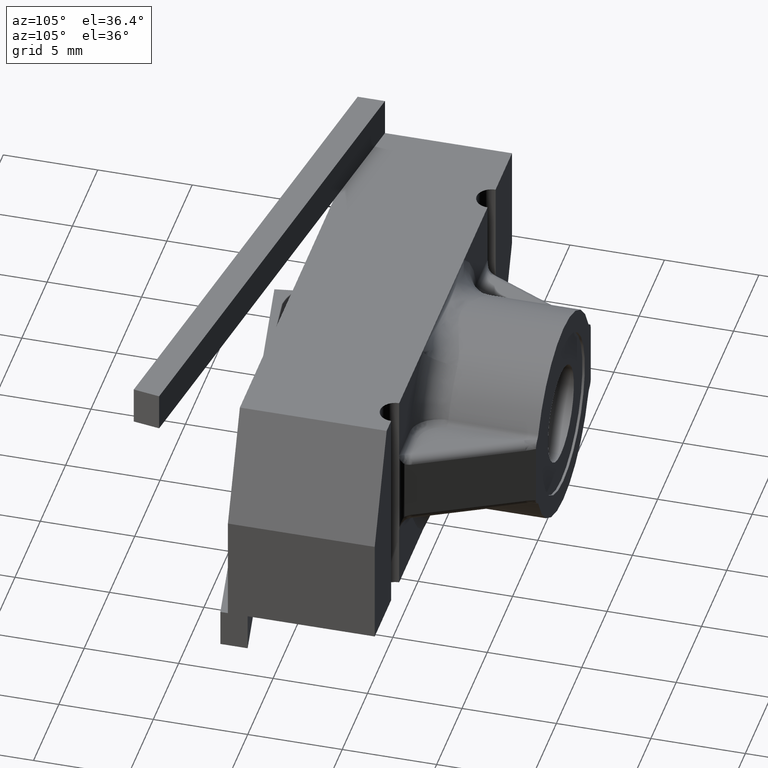
[diagram: clean part render]
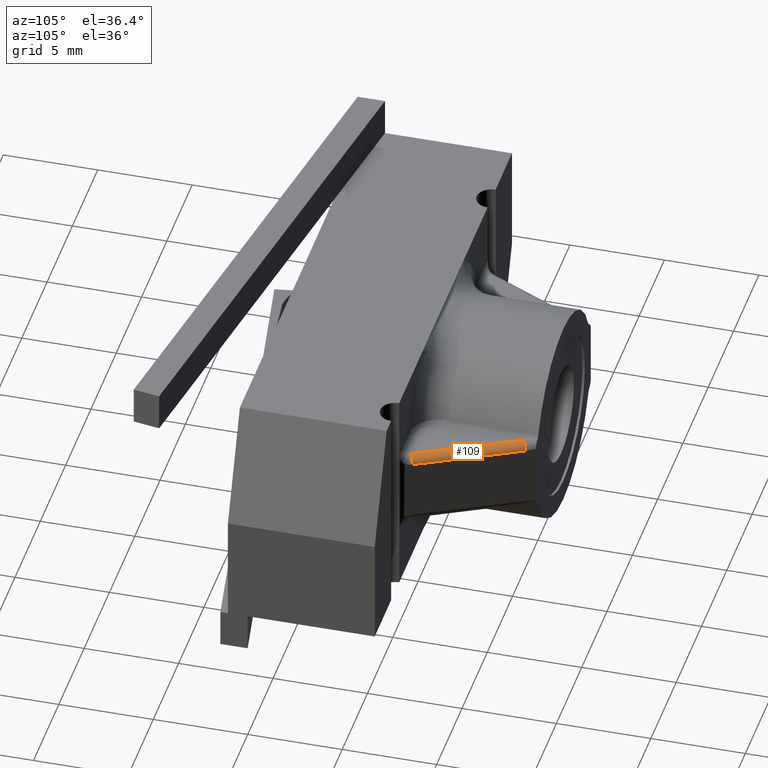
[diagram: same view with one face highlighted and labeled with its STEP entity id]
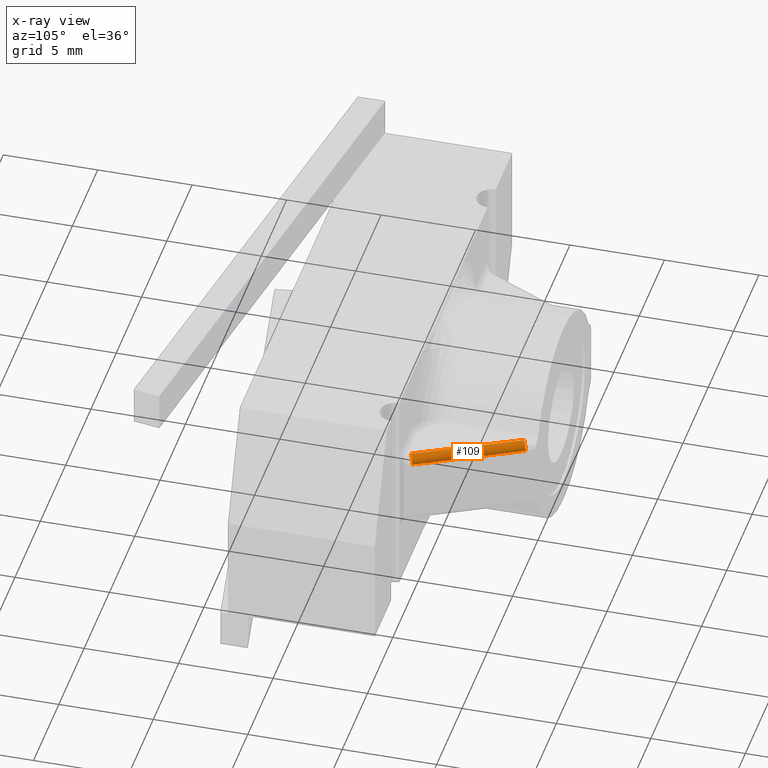
[diagram: x-ray of the same camera — body ghosted, the highlighted face saturated]
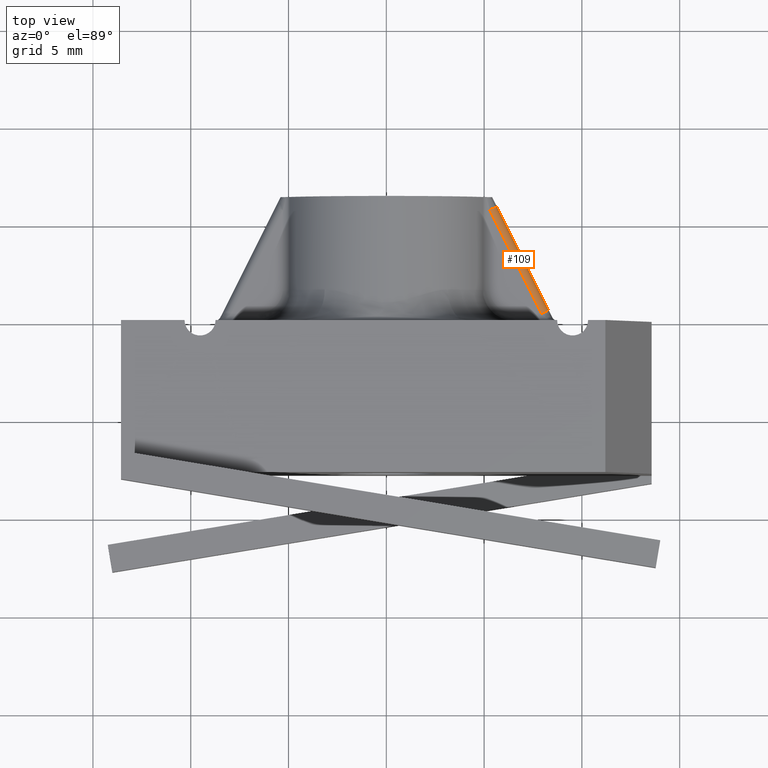
[diagram: same view with one face highlighted and labeled with its STEP entity id]
A machine part, auxiliary view. The second image highlights one B-rep face of the part: STEP entity #109.
The next image is the same camera in x-ray: the body ghosted, the highlighted face saturated — about 0% of this face is hidden behind the body in this view.
A second angle (top view) of the same face is appended — the face is thin or edge-on in the first view.
In plain terms, the highlighted cylindrical surface (edge-blend (fillet) strip) has radius 0.3969 mm, axis along (0.4472, -0.8944, 0).
Its self-contained STEP definition (entity closure, byte-faithful):
#109 = ADVANCED_FACE ( 'NONE', ( #1845 ), #1859, .T. ) ;
#304 = CARTESIAN_POINT ( 'NONE',  ( 0.3301875000000001900, 0.01562499999999982700, 0.06250000000000000000 ) ) ;
#305 = DIRECTION ( 'NONE',  ( 0.4472135954999581500, -0.8944271909999157400, -0.0000000000000000000 ) ) ;
#318 = CARTESIAN_POINT ( 'NONE',  ( 0.1990245751406263000, 0.2430122875703131500, 0.07812500000000000000 ) ) ;
#319 = DIRECTION ( 'NONE',  ( -0.4472135954999581500, 0.8944271909999157400, 0.0000000000000000000 ) ) ;
#874 = CARTESIAN_POINT ( 'NONE',  ( 0.2085193711025428700, 0.2240226956464800300, 0.06250000000000001400 ) ) ;
#875 = DIRECTION ( 'NONE',  ( 0.4472135954999580400, -0.8944271909999160800, -1.954751301769507100E-015 ) ) ;
#876 = DIRECTION ( 'NONE',  ( 0.8944271909999158600, 0.4472135954999579300, 0.0000000000000000000 ) ) ;
#883 = CARTESIAN_POINT ( 'NONE',  ( 0.3127182189257829400, 0.01562500000000000700, 0.06250000000000000000 ) ) ;
#886 = DIRECTION ( 'NONE',  ( 0.4472135954999578700, -0.8944271909999159700, 1.221719563605941200E-016 ) ) ;
#887 = DIRECTION ( 'NONE',  ( 0.8944271909999160800, 0.4472135954999575900, 0.0000000000000000000 ) ) ;
#1116 = ORIENTED_EDGE ( 'NONE', *, *, #3142, .F. ) ;
#1121 = ORIENTED_EDGE ( 'NONE', *, *, #3761, .F. ) ;
#1123 = ORIENTED_EDGE ( 'NONE', *, *, #3138, .T. ) ;
#1129 = ORIENTED_EDGE ( 'NONE', *, *, #3755, .F. ) ;
#1273 = AXIS2_PLACEMENT_3D ( 'NONE', #874, #875, #876 ) ;
#1277 = AXIS2_PLACEMENT_3D ( 'NONE', #883, #886, #887 ) ;
#1845 = FACE_OUTER_BOUND ( 'NONE', #3578, .T. ) ;
#1859 = CYLINDRICAL_SURFACE ( 'NONE', #3166, 0.01562500000000001400 ) ;
#2126 = VERTEX_POINT ( 'NONE', #3668 ) ;
#2127 = VERTEX_POINT ( 'NONE', #3669 ) ;
#2139 = VERTEX_POINT ( 'NONE', #3681 ) ;
#2164 = VERTEX_POINT ( 'NONE', #3706 ) ;
#2455 = DIRECTION ( 'NONE',  ( 0.8944271909999158600, 0.4472135954999579300, 0.0000000000000000000 ) ) ;
#2460 = CARTESIAN_POINT ( 'NONE',  ( 0.1865245751406262900, 0.2680122875703131500, 0.06250000000000000000 ) ) ;
#2461 = DIRECTION ( 'NONE',  ( 0.4472135954999582100, -0.8944271909999158600, 0.0000000000000000000 ) ) ;
#3138 = EDGE_CURVE ( 'NONE', #2126, #2139, #3211, .T. ) ;
#3142 = EDGE_CURVE ( 'NONE', #2127, #2164, #3216, .T. ) ;
#3166 = AXIS2_PLACEMENT_3D ( 'NONE', #2460, #2461, #2455 ) ;
#3211 = CIRCLE ( 'NONE', #1273, 0.01562500000000001400 ) ;
#3216 = CIRCLE ( 'NONE', #1277, 0.01562500000000001000 ) ;
#3237 = LINE ( 'NONE', #304, #3247 ) ;
#3242 = LINE ( 'NONE', #318, #3255 ) ;
#3247 = VECTOR ( 'NONE', #305, 39.37007874015748900 ) ;
#3255 = VECTOR ( 'NONE', #319, 39.37007874015748900 ) ;
#3578 = EDGE_LOOP ( 'NONE', ( #1123, #1121, #1116, #1129 ) ) ;
#3668 = CARTESIAN_POINT ( 'NONE',  ( 0.2224947959619165700, 0.2310104080761668800, 0.06250000000000000000 ) ) ;
#3669 = CARTESIAN_POINT ( 'NONE',  ( 0.3266936437851566400, 0.02261271242968685200, 0.06250000000000000000 ) ) ;
#3681 = CARTESIAN_POINT ( 'NONE',  ( 0.2085193711025428700, 0.2240226956464800000, 0.07812500000000000000 ) ) ;
#3706 = CARTESIAN_POINT ( 'NONE',  ( 0.3127182189257829400, 0.01562499999999998800, 0.07812500000000000000 ) ) ;
#3755 = EDGE_CURVE ( 'NONE', #2126, #2127, #3237, .T. ) ;
#3761 = EDGE_CURVE ( 'NONE', #2164, #2139, #3242, .T. ) ;